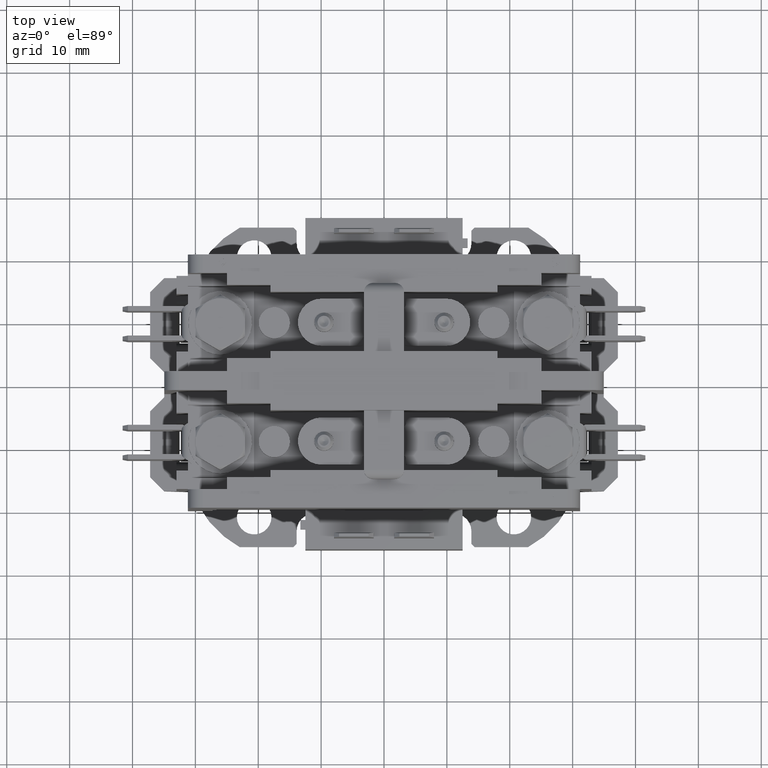
[diagram: clean part render]
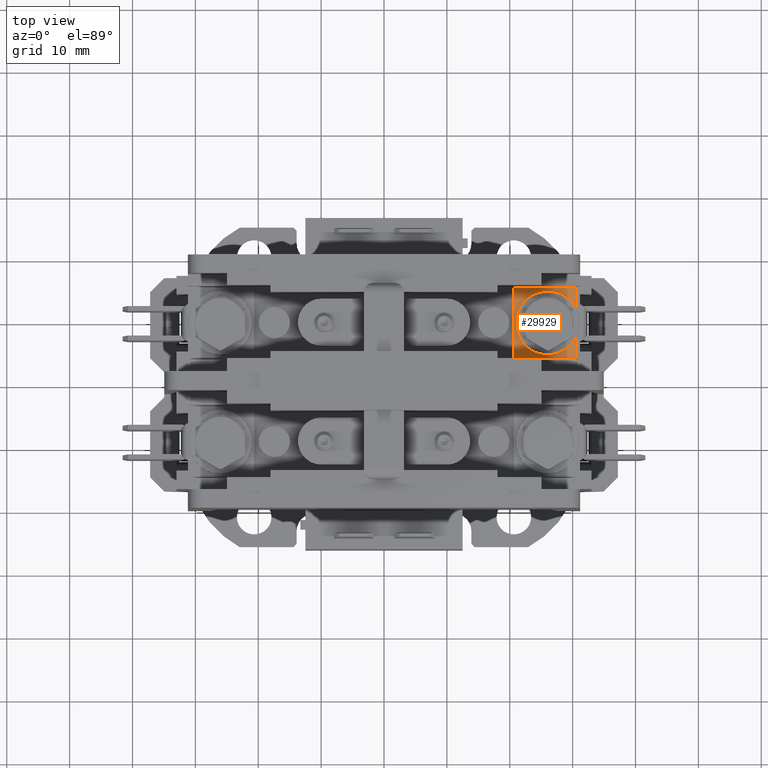
[diagram: same view with one face highlighted and labeled with its STEP entity id]
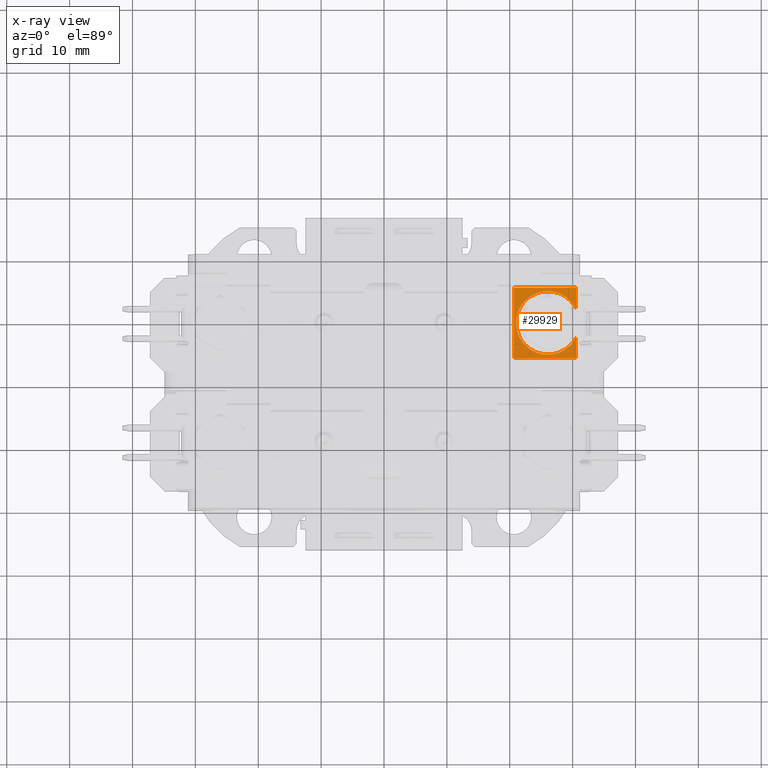
[diagram: x-ray of the same camera — body ghosted, the highlighted face saturated]
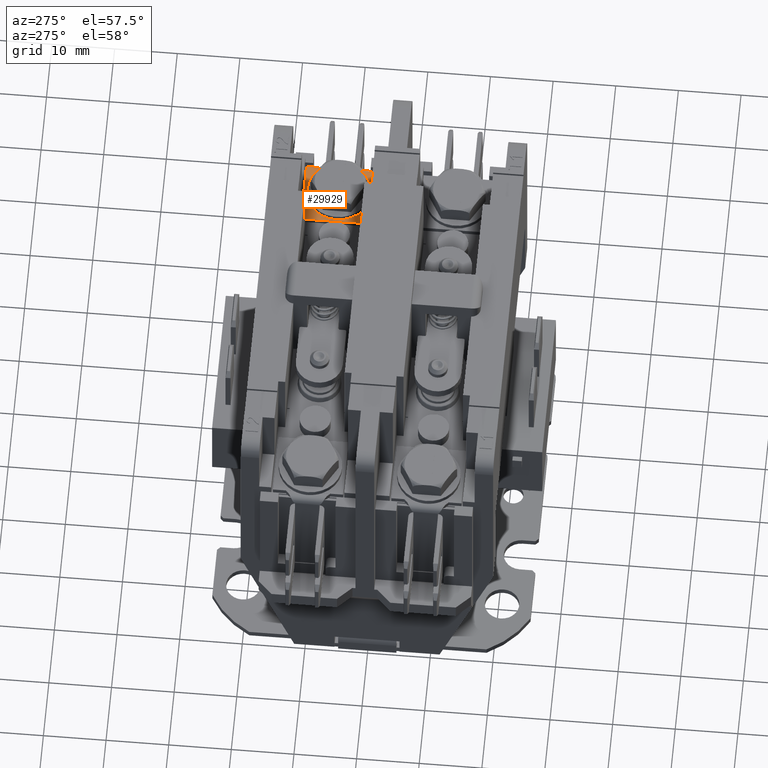
[diagram: same view with one face highlighted and labeled with its STEP entity id]
A machine part, top view. The second image highlights one B-rep face of the part: STEP entity #29929.
The next image is the same camera in x-ray: the body ghosted, the highlighted face saturated — about 0% of this face is hidden behind the body in this view.
A second angle (auxiliary view) of the same face is appended — the face is thin or edge-on in the first view.
In plain terms, the highlighted planar face has unit normal (0, -0, 1).
Its self-contained STEP definition (entity closure, byte-faithful):
#914=LINE($,#43192,#3744);
#919=LINE($,#43202,#3749);
#2681=LINE($,#52458,#5511);
#2704=LINE($,#52525,#5534);
#2710=LINE($,#52556,#5540);
#3744=VECTOR($,#34688,0.99);
#3749=VECTOR($,#34695,0.99);
#5511=VECTOR($,#39213,1.12);
#5534=VECTOR($,#39250,0.333786052596223);
#5540=VECTOR($,#39258,0.333786052596223);
#7084=PLANE($,#32469);
#8901=FACE_OUTER_BOUND($,#10718,.T.);
#10718=EDGE_LOOP($,(#26323,#26324,#26325,#26326,#26327,#26328));
#11555=CIRCLE($,#32138,0.505);
#12758=VERTEX_POINT($,#43189);
#12759=VERTEX_POINT($,#43191);
#12762=VERTEX_POINT($,#43199);
#12763=VERTEX_POINT($,#43201);
#14098=VERTEX_POINT($,#52524);
#14102=VERTEX_POINT($,#52554);
#15631=EDGE_CURVE($,#12759,#12758,#914,.T.);
#15636=EDGE_CURVE($,#12762,#12763,#919,.T.);
#17880=EDGE_CURVE($,#12762,#12759,#2681,.T.);
#17907=EDGE_CURVE($,#12763,#14098,#2704,.T.);
#17913=EDGE_CURVE($,#14102,#12758,#2710,.T.);
#18028=EDGE_CURVE($,#14098,#14102,#11555,.T.);
#26323=ORIENTED_EDGE($,*,*,#18028,.F.);
#26324=ORIENTED_EDGE($,*,*,#17907,.F.);
#26325=ORIENTED_EDGE($,*,*,#15636,.F.);
#26326=ORIENTED_EDGE($,*,*,#17880,.T.);
#26327=ORIENTED_EDGE($,*,*,#15631,.T.);
#26328=ORIENTED_EDGE($,*,*,#17913,.F.);
#29929=ADVANCED_FACE($,(#8901),#7084,.T.);
#32138=AXIS2_PLACEMENT_3D($,#52811,#39506,#39507);
#32469=AXIS2_PLACEMENT_3D($,#53578,#40334,#40335);
#34688=DIRECTION($,(1.,0.,-8.97149918889016E-016));
#34695=DIRECTION($,(1.,0.,-8.97149918889016E-016));
#39213=DIRECTION($,(-4.23295996938143E-044,-1.,-1.90215905688509E-029));
#39250=DIRECTION($,(-4.23295996938143E-044,-1.,-1.90215905688509E-029));
#39258=DIRECTION($,(-4.23295996938143E-044,-1.,-1.90215905688509E-029));
#39506=DIRECTION('center_axis',(8.97149918889016E-016,-1.90215905688509E-029,
1.));
#39507=DIRECTION('ref_axis',(-4.23295996938143E-044,-1.,-1.90215905688509E-029));
#40334=DIRECTION('center_axis',(8.97149918889016E-016,-1.90215905688509E-029,
1.));
#40335=DIRECTION('ref_axis',(0.,-1.,0.));
#43189=CARTESIAN_POINT('',(3.0565,0.385,4.52167343386964));
#43191=CARTESIAN_POINT('',(2.0665,0.385,4.52167343386964));
#43192=CARTESIAN_POINT($,(2.0665,0.385,4.52167343386964));
#43199=CARTESIAN_POINT('',(2.0665,1.505,4.52167343386964));
#43201=CARTESIAN_POINT('',(3.0565,1.505,4.52167343386964));
#43202=CARTESIAN_POINT($,(2.0665,1.505,4.52167343386964));
#52458=CARTESIAN_POINT($,(2.0665,1.505,4.52167343386964));
#52524=CARTESIAN_POINT('',(3.0565,1.17121394740378,4.52167343386964));
#52525=CARTESIAN_POINT($,(3.0565,1.505,4.52167343386964));
#52554=CARTESIAN_POINT('',(3.0565,0.718786052596222,4.52167343386964));
#52556=CARTESIAN_POINT($,(3.0565,1.505,4.52167343386964));
#52811=CARTESIAN_POINT('Origin',(2.605,0.945,4.52167343386964));
#53578=CARTESIAN_POINT('Origin',(2.0665,1.505,4.52167343386964));